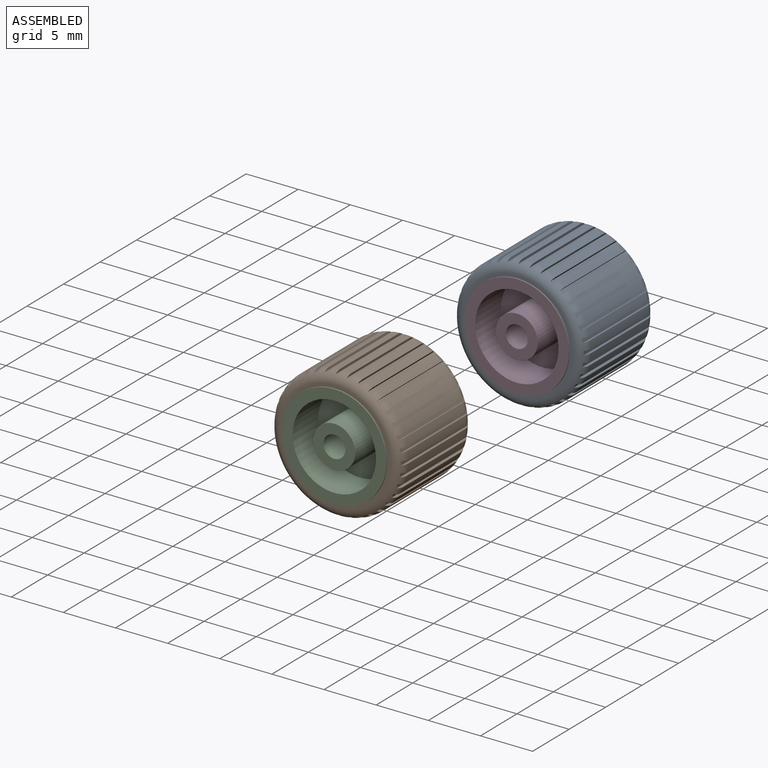
[diagram: assembled view]
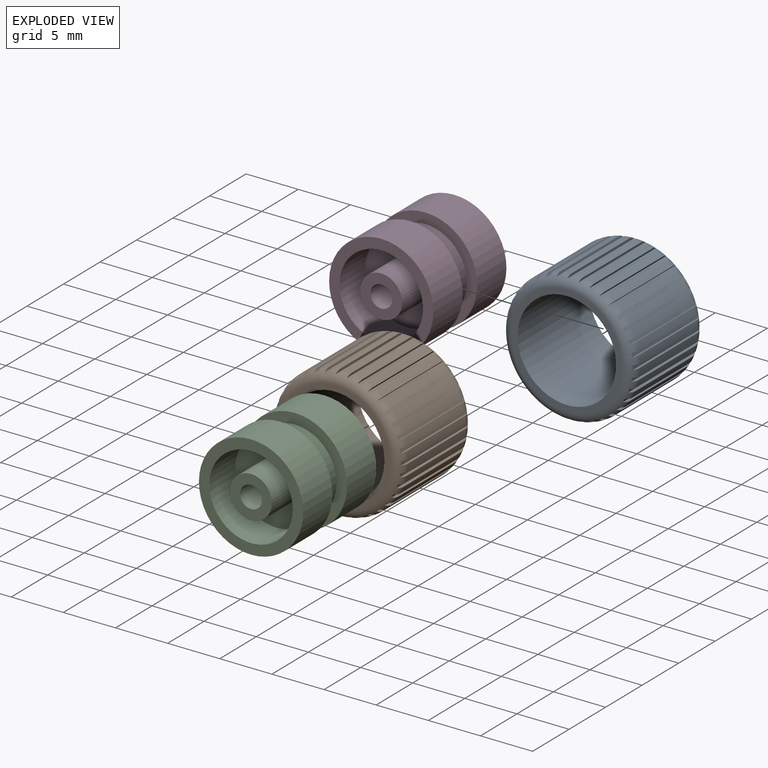
[diagram: exploded view]
GUIDED TOUR — MATED ASSEMBLY (Onshape document 621fa7f78b0153f525e53d5a, AutoMate assembly 621fa7f78b0153f525e53d5a_f2787df7e80d74bad5a82023_729433decdddcaf883be9d0c_default)

This assembly has 4 components, labeled P0..P3 below (a component is one placed occurrence of a part; the same part can appear more than once), held together by 1 mate. A mate is a constraint between two components; its type names the relative motion it leaves free:
  SLIDER — leaves translation along the listed axis free.
Axis/direction vectors are unit vectors and 'through' points are millimeter coordinates, both in the assembly's world frame.

MATES
  1. SLIDER "Slider 1": P1 <-> P2, axis (0.000, 1.000, 0.000) through (-6.75, -4.63, 1.79) mm

ASSEMBLY ORDER
  1. P1 — the base component [order heuristic]
  2. P0 [order heuristic]
  3. P2 [order heuristic]
  4. P3 [order heuristic]
Order-tag legend:
  [order heuristic] — this assembly is geometrically interlocked (no collision-free removal order exists), so components are listed in mate-graph order; insertion feasibility is not verified.

Of the 4 components, 2 carry the full construction recipe — the FeatureScript program that regenerates the part's solid from scratch; the rest are supplied as boundary geometry only.
Each toured component is shown spotlighted twice — in the assembled view, then in the exploded view, where a leader line traces a displaced component back to its assembled socket (saturated green if recipe-attached, orange if geometry-only; every other component desaturated gray) — followed by its recipe or geometry summary and the mates that hold it.
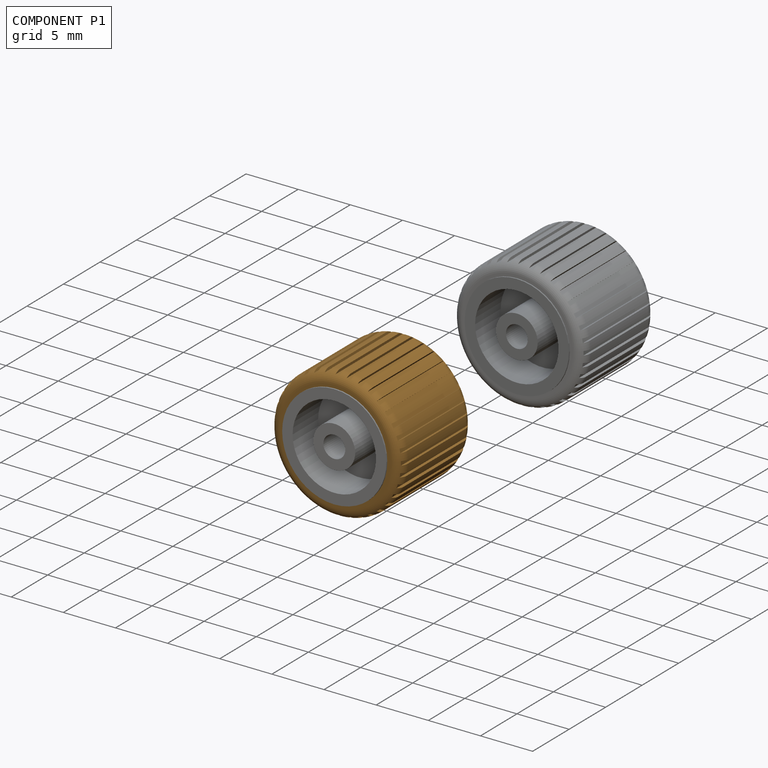
[diagram: component P1 — assembled]
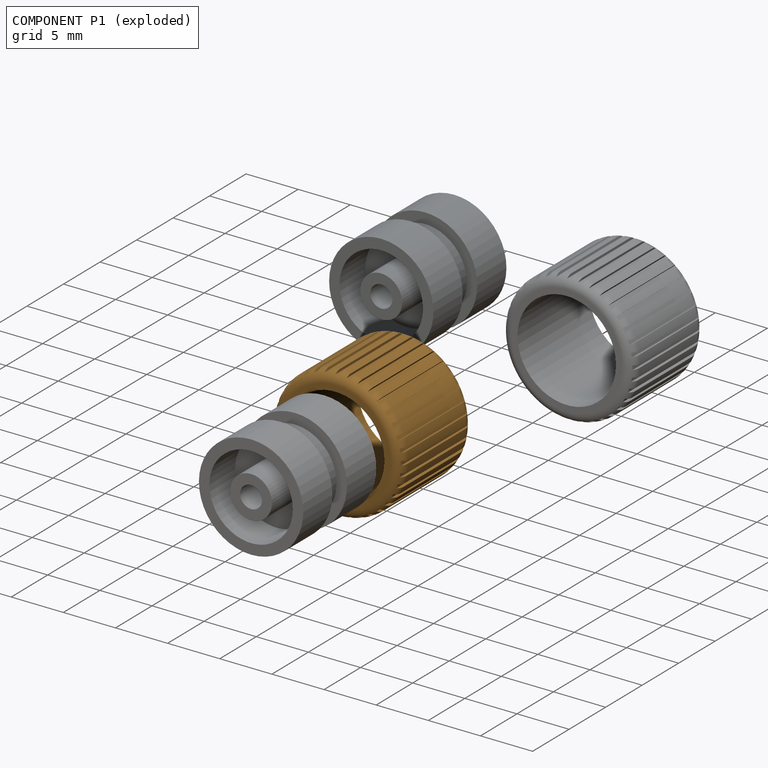
[diagram: component P1 — exploded]
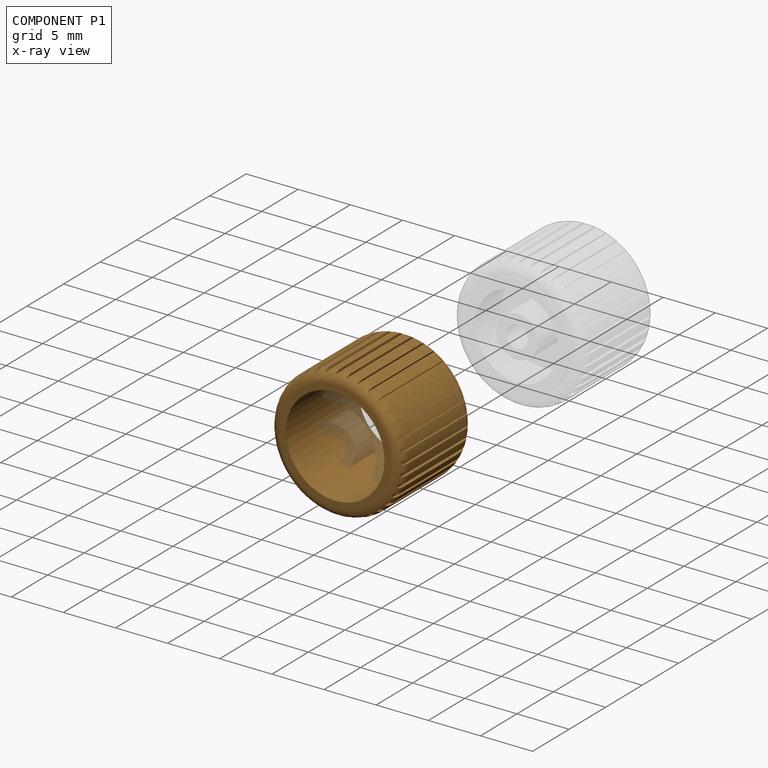
[diagram: component P1 — x-ray view]
COMPONENT P1 — geometry summary (no construction recipe available for this part):
  bounding box: 13.6 x 13.6 x 9.9 mm
  B-rep topology: 1 solid, 149 faces, 882 edges
  volume: 491 mm^3 (27% of its bounding box)
  symmetry: 2-fold rotationally symmetric about the x axis; 6-fold rotationally symmetric about the y axis; 2-fold rotationally symmetric about the z axis; mirror-symmetric across its x mid-plane, y mid-plane, z mid-plane
Held by: SLIDER mate "Slider 1" to P2.
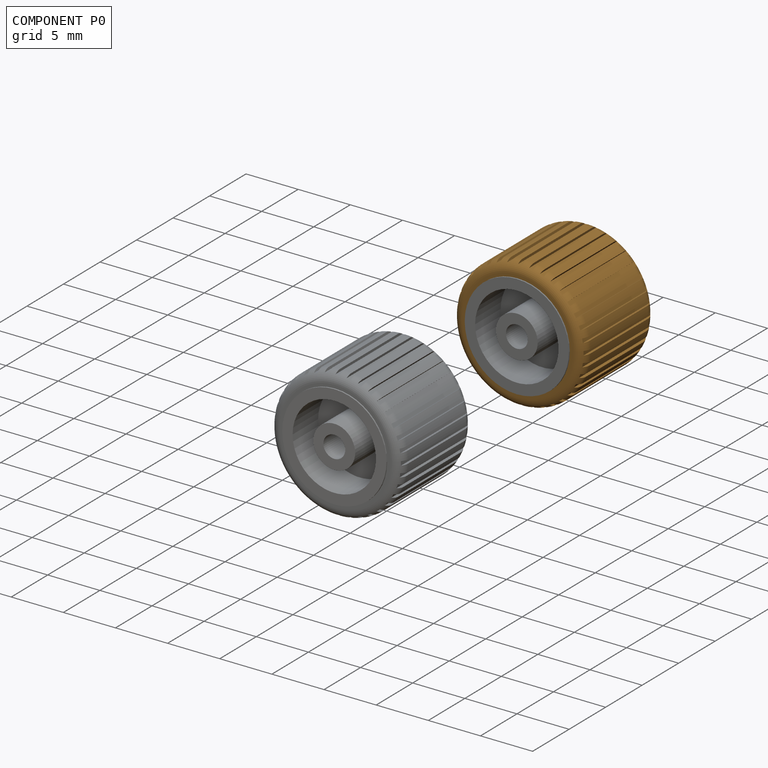
[diagram: component P0 — assembled]
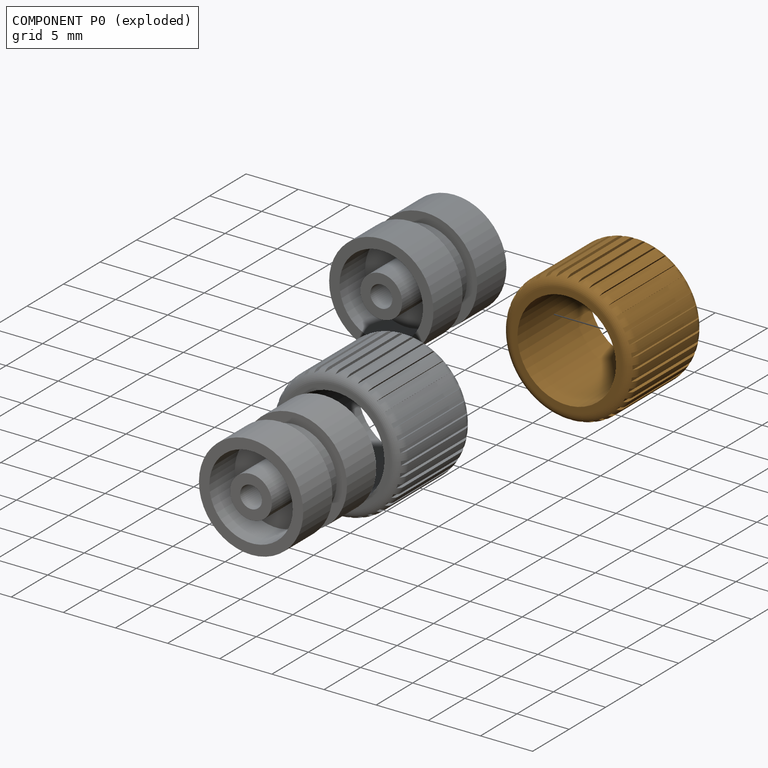
[diagram: component P0 — exploded]
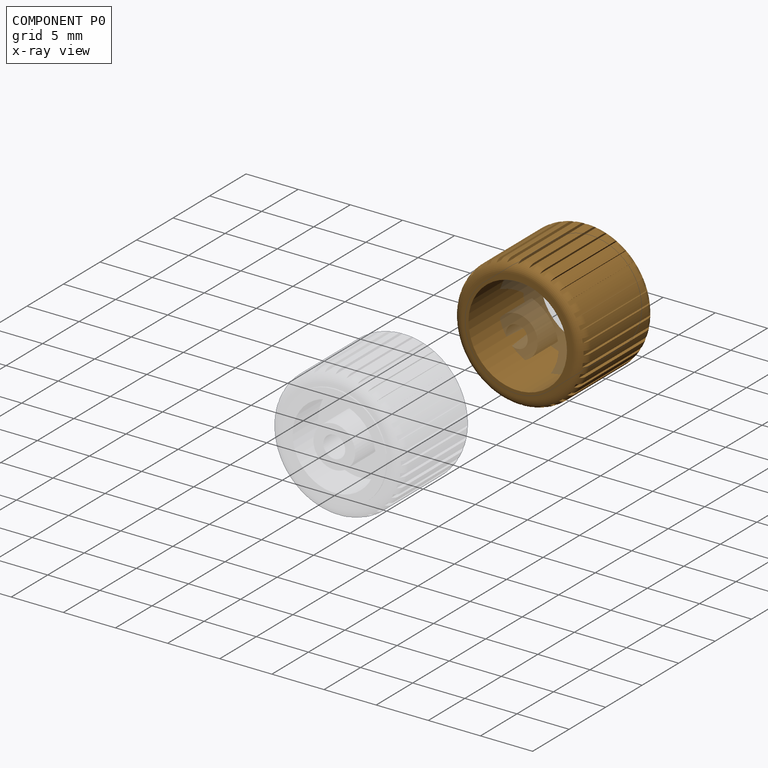
[diagram: component P0 — x-ray view]
COMPONENT P0 — geometry summary (no construction recipe available for this part):
  bounding box: 13.6 x 13.6 x 9.9 mm
  B-rep topology: 1 solid, 149 faces, 882 edges
  volume: 491 mm^3 (27% of its bounding box)
  symmetry: 2-fold rotationally symmetric about the x axis; 6-fold rotationally symmetric about the y axis; 2-fold rotationally symmetric about the z axis; mirror-symmetric across its x mid-plane, y mid-plane, z mid-plane
Held by: no mates (free).
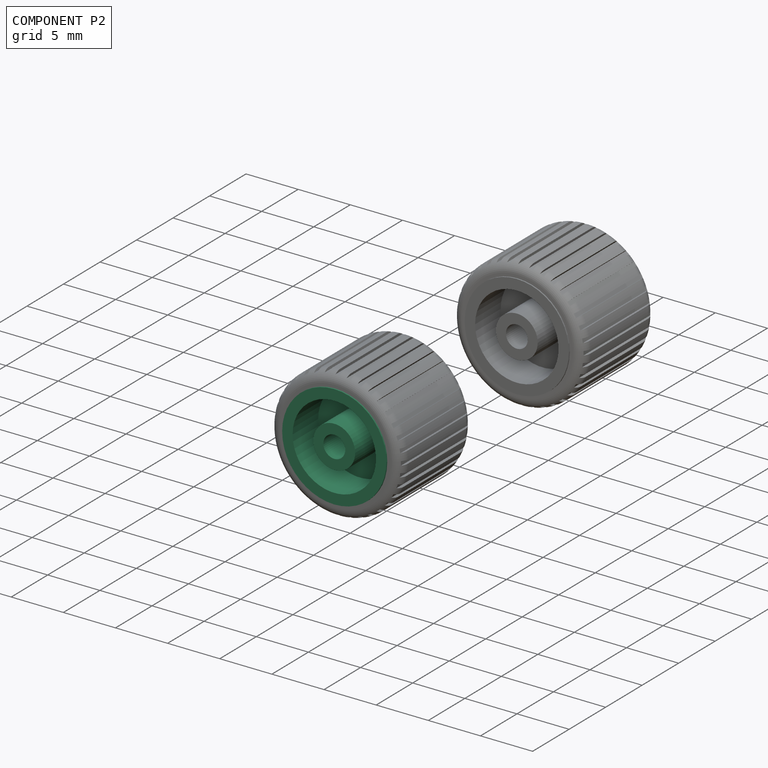
[diagram: component P2 — assembled]
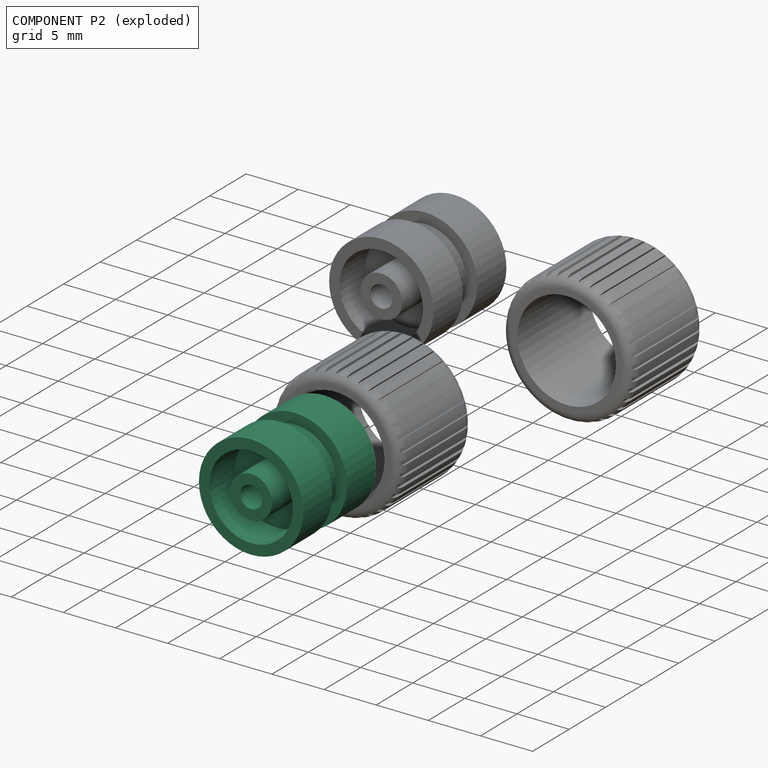
[diagram: component P2 — exploded]
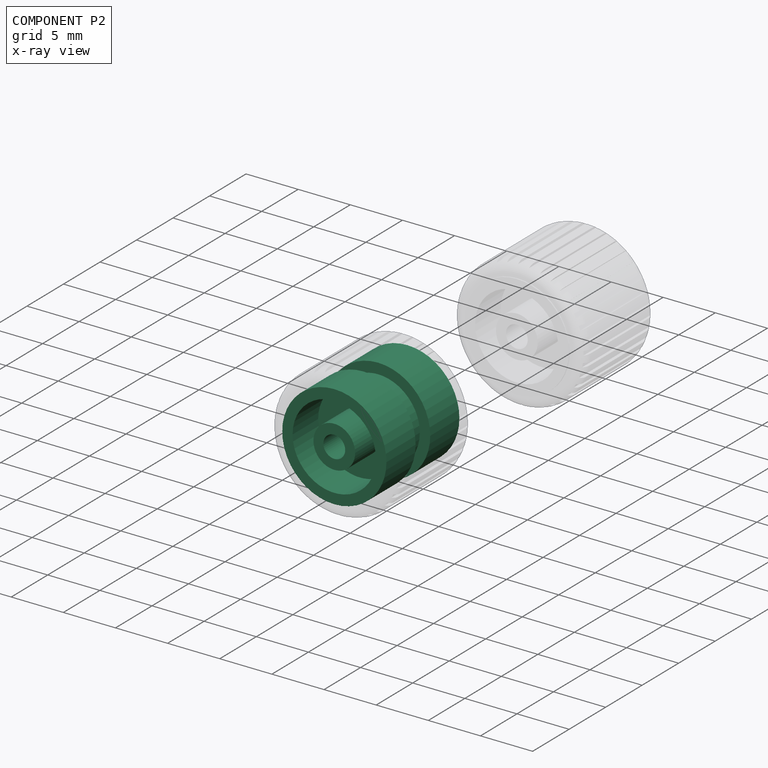
[diagram: component P2 — x-ray view]
COMPONENT P2 — recipe-attached (CADFS 00170734, mesh-verified: the recipe's output STEP matches this component's geometry to below the mesh-comparison resolution (tessellation chordal tolerance ~0.026 mm)).
Held by: SLIDER mate "Slider 1" to P1.
Construction recipe (FeatureScript — the CAD program that rebuilds this solid; sketch coordinates are in the units given by the * unit suffixes, e.g. mm):

FeatureScript 1511;
import(path : "onshape/std/geometry.fs", version : "1511.0");
import(path : "onshape/std/common.fs", version : "1511.0");
const mm = millimeter;
const VERTEX = EntityType.VERTEX;
const EDGE = EntityType.EDGE;
const FACE = EntityType.FACE;
const BODY = EntityType.BODY;
function v(x, y){return vector(x, y);}
function OD(order){return orderDisambiguation(order);}
function OSD(set){return originalSetDisambiguation(set);}
function TD(topology){return topologyDisambiguation(topology);}
function TDD(query){return trueDependencyDisambiguation(query);}
function sQuery(a, b, c) {return sketchEntityQuery(a, b, c);}

annotation { "Feature Type Name" : "Feature", "Feature Type Description" : "" }
export const myFeature = defineFeature(function(context is Context, id is Id, definition is map)
    precondition{}
    {
        {
            var Q0;
            Q0=qCreatedBy(makeId("Front.planeOp"),FACE);
            var sketch = newSketch(context, id + "F0", { "sketchPlane" : qUnion([Q0])});
            skLineSegment(sketch, "E0", {"start": v(0, 0) * mm, "end": v(-127, 0) * mm});
            skLineSegment(sketch, "E1", {"start": v(-127, 0) * mm, "end": v(-127, 50.8) * mm});
            skLineSegment(sketch, "E2", {"start": v(-38.1, 76.2) * mm, "end": v(-38.1, 101.6) * mm});
            skLineSegment(sketch, "E3", {"start": v(-38.1, 101.6) * mm, "end": v(-127, 101.6) * mm});
            skLineSegment(sketch, "E4", {"start": v(-127, 101.6) * mm, "end": v(-127, 127) * mm});
            skLineSegment(sketch, "E5", {"start": v(-127, 127) * mm, "end": v(-25.4, 127) * mm});
            skLineSegment(sketch, "E6", {"start": v(-25.4, 127) * mm, "end": v(-25.4, 101.6) * mm});
            skLineSegment(sketch, "E7", {"start": v(-25.4, 101.6) * mm, "end": v(0, 101.6) * mm});
            skLineSegment(sketch, "E8.MirrorCS", {"start": v(-38.1, 76.2) * mm, "end": v(-38.1, 50.8) * mm});
            skLineSegment(sketch, "E9.MirrorCS", {"start": v(-38.1, 50.8) * mm, "end": v(-127, 50.8) * mm});
            skLineSegment(sketch, "E10.MirrorCS", {"start": v(-127, 50.8) * mm, "end": v(-127, 25.4) * mm});
            skLineSegment(sketch, "E11.MirrorCS", {"start": v(38.1, 76.2) * mm, "end": v(38.1, 50.8) * mm});
            skLineSegment(sketch, "E12.MirrorCS", {"start": v(38.1, 76.2) * mm, "end": v(38.1, 101.6) * mm});
            skLineSegment(sketch, "E13.MirrorCS", {"start": v(38.1, 101.6) * mm, "end": v(127, 101.6) * mm});
            skLineSegment(sketch, "E14.MirrorCS", {"start": v(127, 101.6) * mm, "end": v(127, 127) * mm});
            skLineSegment(sketch, "E15.MirrorCS", {"start": v(127, 127) * mm, "end": v(25.4, 127) * mm});
            skLineSegment(sketch, "E16.MirrorCS", {"start": v(25.4, 127) * mm, "end": v(25.4, 101.6) * mm});
            skLineSegment(sketch, "E17.MirrorCS", {"start": v(25.4, 101.6) * mm, "end": v(0, 101.6) * mm});
            skPoint(sketch, "E18.MirrorCS.end.orphan", {"position": v(38.1, 76.2) * mm});
            skPoint(sketch, "E18.MirrorCS.start.orphan", {"position": v(127, 76.2) * mm});
            skLineSegment(sketch, "E19", {"start": v(38.1, 50.8) * mm, "end": v(38.1, 0) * mm});
            skLineSegment(sketch, "E20", {"start": v(38.1, 0) * mm, "end": v(0, 0) * mm});
            skPoint(sketch, "E21.orphan", {"position": v(-127, 76.2) * mm});
            skSolve(sketch);
        }
        {
            var Q0;
            Q0=makeQuery(id+"F0.imprint","IMPRINT",FACE,{"disambiguationData":[TD([[makeQuery(id+"F0.imprint","IMPRINT",EDGE,{"derivedFrom":sQuery(id+"F0.wireOp",EDGE,"E0")}),-1.0]])]});
            var Q1;
            Q1=sQuery(id+"F0.wireOp",EDGE,"E0");
            revolve(context, id + "F1", {"entities" : qUnion([Q0]), "axis" : qUnion([Q1]), "revolveType" : RevolveType.FULL});
        }
        {
            var Q0;
            Q0=makeQuery(id+"F1.opRevolve","SWEPT_FACE",FACE,{"disambiguationData":[OSD([sQuery(id+"F0.wireOp",EDGE,"E11.MirrorCS"),sQuery(id+"F0.wireOp",EDGE,"E12.MirrorCS"),sQuery(id+"F0.wireOp",EDGE,"E19")])]});
            var sketch = newSketch(context, id + "F2", { "sketchPlane" : qUnion([Q0])});
            skCircle(sketch, "E22", {"center": v(0, 0) * mm, "radius": 50.8 * mm});
            skArc(sketch, "E23.0", {"start": v(6.35, 101.4) * mm, "mid": v(0, 101.6) * mm, "end": v(-6.35, 101.4) * mm});
            skLineSegment(sketch, "E24.0", {"start": v(-6.35, 101.6) * mm, "end": v(-6.35, 50.4) * mm});
            skLineSegment(sketch, "E25.0", {"start": v(6.35, 101.6) * mm, "end": v(6.35, 50.4) * mm});
            skLineSegment(sketch, "E26.1.0", {"start": v(-101.74, -6.35) * mm, "end": v(-50.4, -6.35) * mm});
            skLineSegment(sketch, "E26.1.1", {"start": v(-101.6, 6.35) * mm, "end": v(-50.4, 6.35) * mm});
            skLineSegment(sketch, "E26.2.0", {"start": v(6.35, -101.6) * mm, "end": v(6.35, -50.4) * mm});
            skLineSegment(sketch, "E26.2.1", {"start": v(-6.35, -101.6) * mm, "end": v(-6.35, -50.4) * mm});
            skLineSegment(sketch, "E26.3.0", {"start": v(101.6, 6.35) * mm, "end": v(50.4, 6.35) * mm});
            skLineSegment(sketch, "E26.3.1", {"start": v(101.6, -6.35) * mm, "end": v(50.4, -6.35) * mm});
            skPoint(sketch, "E27.orphan", {"position": v(-50.8, 6.35) * mm});
            skPoint(sketch, "E28.orphan", {"position": v(-50.8, -6.35) * mm});
            skPoint(sketch, "E29.orphan", {"position": v(-6.35, 50.8) * mm});
            skPoint(sketch, "E30.orphan", {"position": v(6.35, 50.8) * mm});
            skPoint(sketch, "E31.orphan", {"position": v(50.8, 6.35) * mm});
            skPoint(sketch, "E32.orphan", {"position": v(50.8, -6.35) * mm});
            skPoint(sketch, "E33.orphan", {"position": v(6.35, -50.8) * mm});
            skPoint(sketch, "E34.orphan", {"position": v(-6.35, -50.8) * mm});
            skPoint(sketch, "E35.orphan", {"position": v(-6.35, -101.6) * mm});
            skPoint(sketch, "E36.orphan", {"position": v(6.35, -101.6) * mm});
            skPoint(sketch, "E37.orphan", {"position": v(101.6, -6.35) * mm});
            skPoint(sketch, "E38.orphan", {"position": v(101.6, 6.35) * mm});
            skPoint(sketch, "E39.orphan", {"position": v(-101.6, -6.35) * mm});
            skPoint(sketch, "E40.orphan", {"position": v(-101.6, 6.35) * mm});
            skPoint(sketch, "E41.orphan", {"position": v(-6.35, 101.6) * mm});
            skPoint(sketch, "E42.orphan", {"position": v(6.35, 101.6) * mm});
            skArc(sketch, "E43.trimOffspring", {"start": v(-101.4, 6.35) * mm, "mid": v(-101.6, 0) * mm, "end": v(-101.4, -6.35) * mm});
            skArc(sketch, "E44.trimOffspring", {"start": v(-6.35, -101.4) * mm, "mid": v(0, -101.6) * mm, "end": v(6.35, -101.4) * mm});
            skArc(sketch, "E45.trimOffspring", {"start": v(101.4, -6.35) * mm, "mid": v(101.6, 0) * mm, "end": v(101.4, 6.35) * mm});
            skSolve(sketch);
        }
        {
            var Q0;
            Q0 = qSketchRegion(id + "F2", true);
            extrude(context, id + "F3", {"entities" : qUnion([Q0]), "operationType" : NewBodyOperationType.ADD, "depth" : (2.54 * 8) * mm});
        }
        {
            var Q0;
            Q0=makeQuery(id+"F1.opRevolve","SWEPT_FACE",FACE,{"disambiguationData":[OSD([sQuery(id+"F0.wireOp",EDGE,"E1"),sQuery(id+"F0.wireOp",EDGE,"E10.MirrorCS")])]});
            var sketch = newSketch(context, id + "F4", { "sketchPlane" : qUnion([Q0])});
            skCircle(sketch, "E46", {"center": v(0, 0) * mm, "radius": 26.6 * mm});
            skSolve(sketch);
        }
        {
            var Q0;
            Q0=makeQuery(id+"F4.imprint","IMPRINT",FACE,{"disambiguationData":[TD([[makeQuery(id+"F4.imprint","IMPRINT",EDGE,{"derivedFrom":sQuery(id+"F4.wireOp",EDGE,"E46")}),1.0]])]});
            extrude(context, id + "F5", {"entities" : qUnion([Q0]), "operationType" : NewBodyOperationType.REMOVE, "endBound" : BoundingType.THROUGH_ALL, "oppositeDirection" : true, "depth" : 25 * mm});
        }
        {
            var Q0;
            Q0=makeQuery(id+"F1.opRevolve","SWEPT_BODY",BODY,{"disambiguationData":[OSD([sQuery(id+"F0.wireOp",EDGE,"E0"),sQuery(id+"F0.wireOp",EDGE,"E1"),sQuery(id+"F0.wireOp",EDGE,"E2"),sQuery(id+"F0.wireOp",EDGE,"E3"),sQuery(id+"F0.wireOp",EDGE,"E4"),sQuery(id+"F0.wireOp",EDGE,"E5"),sQuery(id+"F0.wireOp",EDGE,"E6"),sQuery(id+"F0.wireOp",EDGE,"E7"),sQuery(id+"F0.wireOp",EDGE,"E10.MirrorCS"),sQuery(id+"F0.wireOp",EDGE,"E9.MirrorCS"),sQuery(id+"F0.wireOp",EDGE,"E8.MirrorCS"),sQuery(id+"F0.wireOp",EDGE,"E11.MirrorCS"),sQuery(id+"F0.wireOp",EDGE,"E12.MirrorCS"),sQuery(id+"F0.wireOp",EDGE,"E13.MirrorCS"),sQuery(id+"F0.wireOp",EDGE,"E14.MirrorCS"),sQuery(id+"F0.wireOp",EDGE,"E15.MirrorCS"),sQuery(id+"F0.wireOp",EDGE,"E16.MirrorCS"),sQuery(id+"F0.wireOp",EDGE,"E17.MirrorCS"),sQuery(id+"F0.wireOp",EDGE,"E19"),sQuery(id+"F0.wireOp",EDGE,"E20")])]});
            var Q1;
            Q1=qCreatedBy(makeId("Origin.pointOp"),VERTEX);
            transform(context, id + "F6", {"entities" : qUnion([Q0]), "transformType" : TransformType.SCALE_UNIFORMLY, "scale" : 1 / 25.4, "scalePoint" : qUnion([Q1]), "makeCopy" : false});
        }
    });
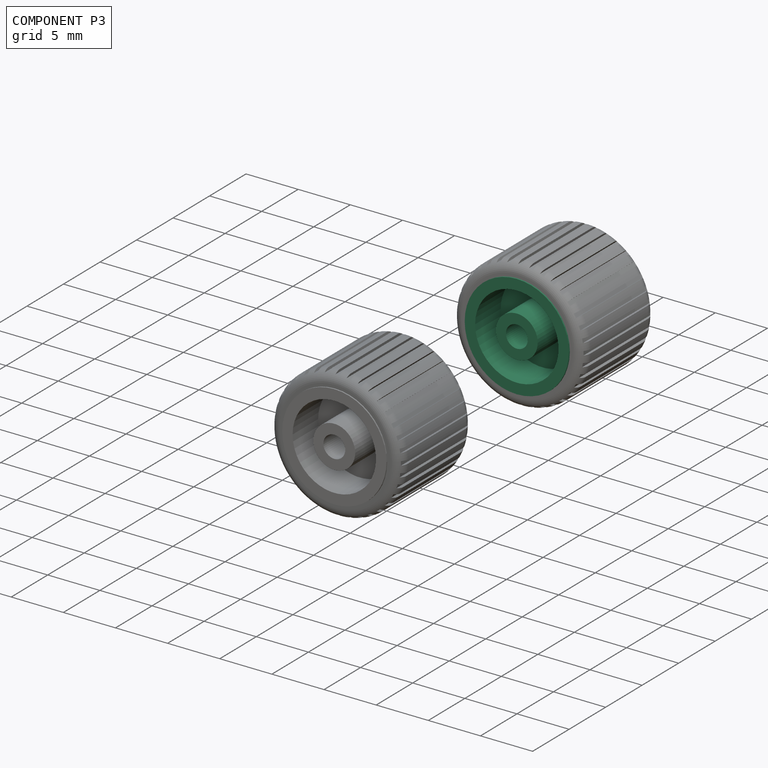
[diagram: component P3 — assembled]
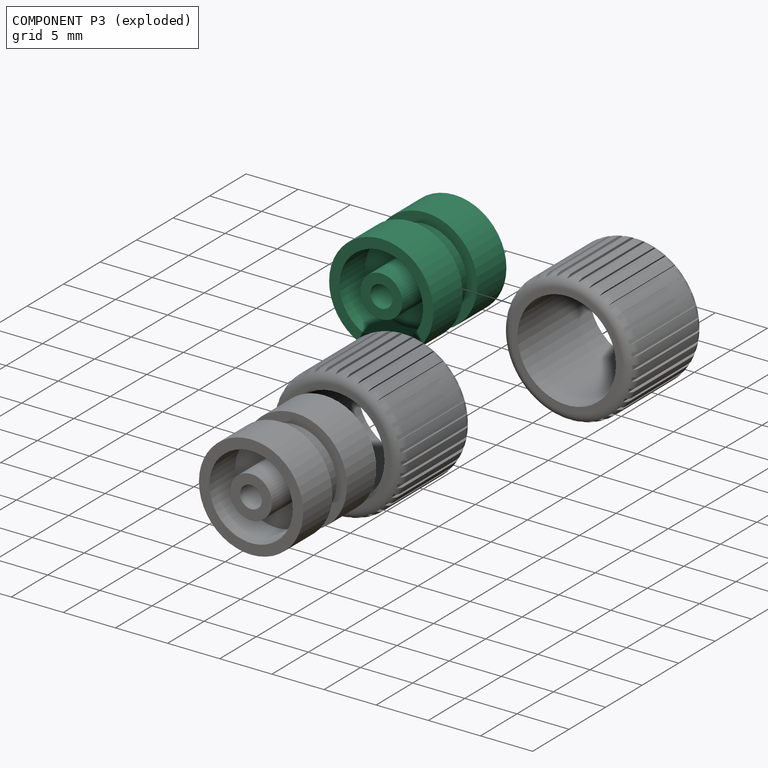
[diagram: component P3 — exploded]
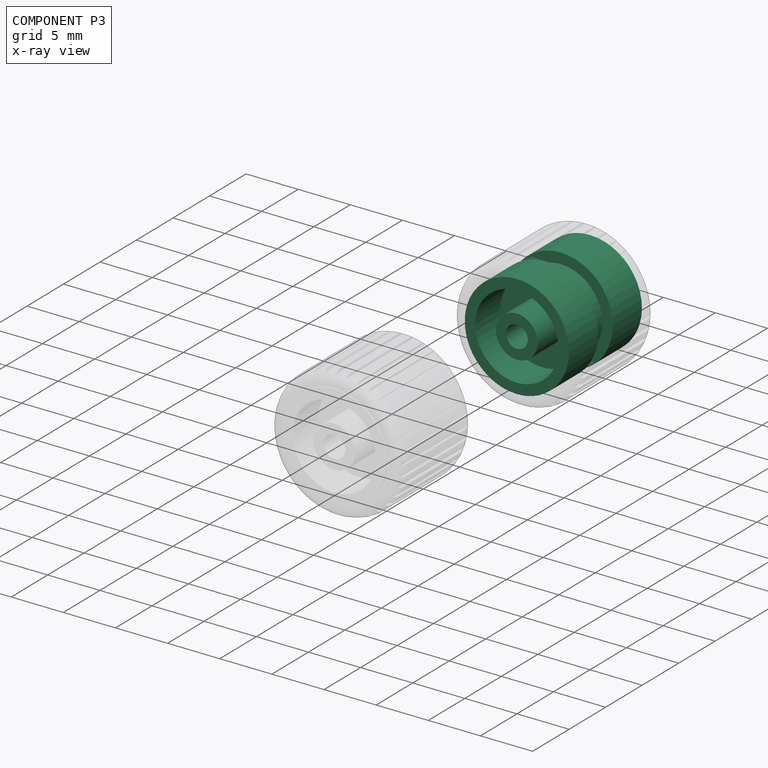
[diagram: component P3 — x-ray view]
COMPONENT P3 — same part as P2 (CADFS 00170734); its construction recipe is shown at P2.
Held by: no mates (free).
PROVENANCE & LICENSES
Assembly (occurrences, transforms, mates, per-part STEP geometry): AutoMate dataset, Zenodo record 7776208, CC0.
Construction recipes: CADFS (HuggingFace VladPyatov/CADFS, CC-BY-4.0, layered over the ABC dataset), FeatureScript reconstruction programs keyed by ABC model id.
Join: ABC meta listings map ABC model id -> Onshape documentId; within a shared document, parts are matched by geometric signature (bounding-box dims + volume at 0.1% relative tolerance, exact B-rep face/solid counts).
Verification: 2 of this assembly's 4 components carry a recipe attachment, and every attachment is mesh-verified: the CADFS STEP and the AutoMate member STEP were compared as meshes in their shared local frame (symmetric sampled-point-to-mesh distance); worst across the 2 attachments: below the mesh-comparison resolution (tessellation chordal tolerance ~0.026 mm) on a 17 mm part.
Renders: orthographic iso camera (az 35 / el 25); the floor grid conveys scale (grid pitch printed in each image; no ruler). In the exploded view each component is displaced by its stored offset vector: the offsets alone carry the explosion direction (mate normal/axis signs are not orientation cues and do not encode it), and separation distances are assigned per mate-chain, not proportionally to assembly-order depth.
